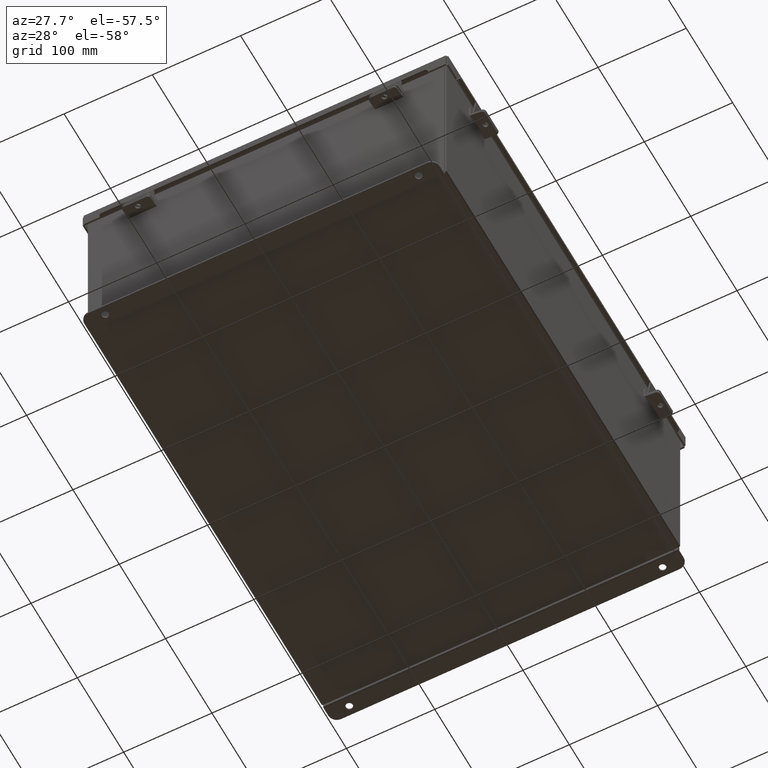
[diagram: clean part render]
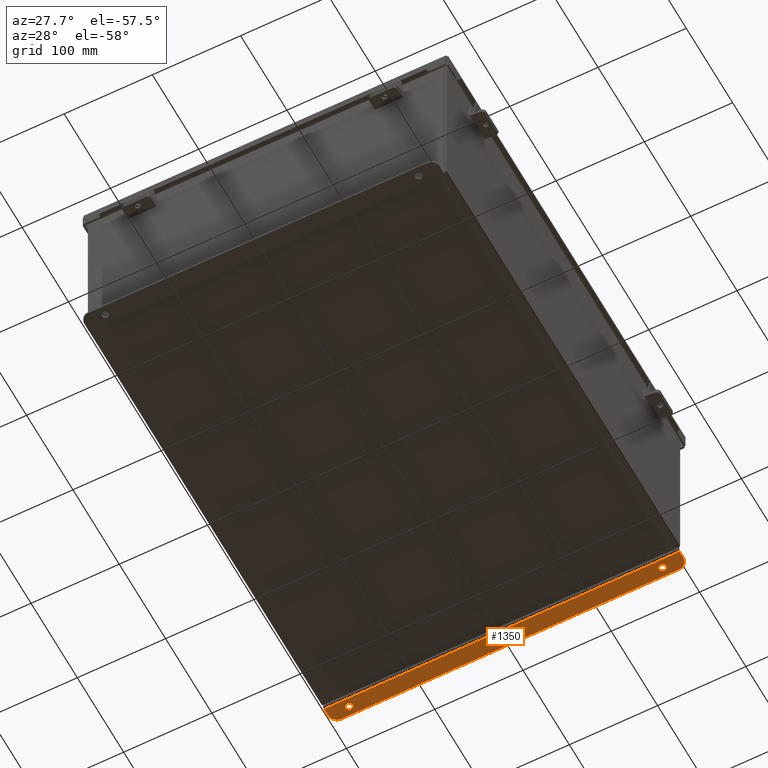
[diagram: same view with one face highlighted and labeled with its STEP entity id]
A machine part, auxiliary view. The second image highlights one B-rep face of the part: STEP entity #1350.
In plain terms, the highlighted planar face has unit normal (0, 0, 1).
Its self-contained STEP definition (entity closure, byte-faithful):
#174 = CARTESIAN_POINT ( 'NONE',  ( 0.0000000000000000000, -1.529834876451987200E-014, -4.187000000000000300 ) ) ;
#320 = CIRCLE ( 'NONE', #4927, 0.3750000000000000600 ) ;
#374 = ORIENTED_EDGE ( 'NONE', *, *, #5047, .T. ) ;
#402 = CARTESIAN_POINT ( 'NONE',  ( 7.550300000000000900, 0.7377999999999989000, -4.187000000000002900 ) ) ;
#669 = EDGE_CURVE ( 'NONE', #8349, #9658, #5257, .T. ) ;
#1083 = LINE ( 'NONE', #7195, #4829 ) ;
#1084 = CARTESIAN_POINT ( 'NONE',  ( -7.550299999999998200, 0.3628000000000008400, -4.187000000000001200 ) ) ;
#1112 = CARTESIAN_POINT ( 'NONE',  ( 6.987800000000000900, 0.3628000000000008400, -4.187000000000001200 ) ) ;
#1158 = CARTESIAN_POINT ( 'NONE',  ( -6.987799999999999100, 0.5188000000000010400, -4.187000000000002100 ) ) ;
#1350 = ADVANCED_FACE ( 'NONE', ( #9416, #5299, #9663 ), #3887, .F. ) ;
#1375 = ORIENTED_EDGE ( 'NONE', *, *, #9020, .T. ) ;
#1517 = ORIENTED_EDGE ( 'NONE', *, *, #1941, .T. ) ;
#1621 = DIRECTION ( 'NONE',  ( 0.0000000000000000000, -3.702694488566362300E-015, -1.000000000000000000 ) ) ;
#1869 = DIRECTION ( 'NONE',  ( 0.0000000000000000000, -1.000000000000000000, 3.702694488566362300E-015 ) ) ;
#1941 = EDGE_CURVE ( 'NONE', #4382, #6588, #3546, .T. ) ;
#1971 = EDGE_LOOP ( 'NONE', ( #9066, #3516 ) ) ;
#2025 = AXIS2_PLACEMENT_3D ( 'NONE', #9094, #4436, #9858 ) ;
#2045 = DIRECTION ( 'NONE',  ( 0.0000000000000000000, -3.702694488566362300E-015, -1.000000000000000000 ) ) ;
#2046 = VECTOR ( 'NONE', #7804, 39.37007874015748100 ) ;
#2048 = VERTEX_POINT ( 'NONE', #8627 ) ;
#2126 = EDGE_LOOP ( 'NONE', ( #9045, #7983 ) ) ;
#2145 = LINE ( 'NONE', #2422, #2046 ) ;
#2422 = CARTESIAN_POINT ( 'NONE',  ( 7.925300000000000900, 0.01300000000000010700, -4.187000000000000300 ) ) ;
#2427 = VERTEX_POINT ( 'NONE', #5351 ) ;
#2721 = AXIS2_PLACEMENT_3D ( 'NONE', #6595, #2045, #7399 ) ;
#2757 = CARTESIAN_POINT ( 'NONE',  ( 7.550300000000000900, 0.3628000000000008400, -4.187000000000001200 ) ) ;
#2767 = CIRCLE ( 'NONE', #2025, 0.1560000000000001900 ) ;
#2797 = AXIS2_PLACEMENT_3D ( 'NONE', #174, #5571, #4279 ) ;
#2912 = CIRCLE ( 'NONE', #8493, 0.3750000000000000600 ) ;
#3496 = EDGE_CURVE ( 'NONE', #6588, #2048, #2912, .T. ) ;
#3516 = ORIENTED_EDGE ( 'NONE', *, *, #669, .F. ) ;
#3525 = DIRECTION ( 'NONE',  ( 0.0000000000000000000, -1.000000000000000000, 4.370956789862820400E-015 ) ) ;
#3546 = LINE ( 'NONE', #4490, #9686 ) ;
#3887 = PLANE ( 'NONE',  #2797 ) ;
#3928 = VERTEX_POINT ( 'NONE', #5377 ) ;
#4279 = DIRECTION ( 'NONE',  ( 0.0000000000000000000, -1.000000000000000000, 3.702694488566362300E-015 ) ) ;
#4378 = DIRECTION ( 'NONE',  ( 0.0000000000000000000, -1.000000000000000000, 4.370956789862820400E-015 ) ) ;
#4382 = VERTEX_POINT ( 'NONE', #7190 ) ;
#4436 = DIRECTION ( 'NONE',  ( 0.0000000000000000000, -3.702694488566362300E-015, -1.000000000000000000 ) ) ;
#4490 = CARTESIAN_POINT ( 'NONE',  ( -7.925299999999998200, -1.529834876451987200E-014, -4.187000000000000300 ) ) ;
#4666 = DIRECTION ( 'NONE',  ( 0.0000000000000000000, 1.000000000000000000, -3.502369222646487000E-015 ) ) ;
#4829 = VECTOR ( 'NONE', #1869, 39.37007874015748100 ) ;
#4927 = AXIS2_PLACEMENT_3D ( 'NONE', #2757, #8139, #3525 ) ;
#4980 = EDGE_CURVE ( 'NONE', #5158, #3928, #5306, .T. ) ;
#5047 = EDGE_CURVE ( 'NONE', #2048, #9632, #9485, .T. ) ;
#5158 = VERTEX_POINT ( 'NONE', #7405 ) ;
#5256 = CIRCLE ( 'NONE', #2721, 0.1560000000000001900 ) ;
#5257 = CIRCLE ( 'NONE', #8052, 0.1560000000000001900 ) ;
#5299 = FACE_BOUND ( 'NONE', #2126, .T. ) ;
#5306 = CIRCLE ( 'NONE', #8808, 0.1560000000000001900 ) ;
#5321 = ORIENTED_EDGE ( 'NONE', *, *, #8711, .F. ) ;
#5351 = CARTESIAN_POINT ( 'NONE',  ( 7.925300000000000900, 0.01300000000000010700, -4.187000000000000300 ) ) ;
#5377 = CARTESIAN_POINT ( 'NONE',  ( 6.987800000000000900, 0.5188000000000010400, -4.187000000000002100 ) ) ;
#5571 = DIRECTION ( 'NONE',  ( 0.0000000000000000000, 3.702694488566362300E-015, 1.000000000000000000 ) ) ;
#5709 = ORIENTED_EDGE ( 'NONE', *, *, #9593, .T. ) ;
#5776 = CARTESIAN_POINT ( 'NONE',  ( 0.0000000000000000000, 0.7377999999999989000, -4.187000000000002900 ) ) ;
#6385 = CARTESIAN_POINT ( 'NONE',  ( -7.925299999999998200, 0.3628000000000008400, -4.187000000000001200 ) ) ;
#6588 = VERTEX_POINT ( 'NONE', #6385 ) ;
#6595 = CARTESIAN_POINT ( 'NONE',  ( -6.987799999999999100, 0.3628000000000008400, -4.187000000000001200 ) ) ;
#6831 = ORIENTED_EDGE ( 'NONE', *, *, #3496, .T. ) ;
#7190 = CARTESIAN_POINT ( 'NONE',  ( -7.925299999999998200, 0.01300000000000010700, -4.187000000000000300 ) ) ;
#7195 = CARTESIAN_POINT ( 'NONE',  ( 7.925300000000000900, -1.529834876451987200E-014, -4.187000000000000300 ) ) ;
#7399 = DIRECTION ( 'NONE',  ( 0.0000000000000000000, 1.000000000000000000, -3.502369222646487000E-015 ) ) ;
#7405 = CARTESIAN_POINT ( 'NONE',  ( 6.987800000000000900, 0.2068000000000006800, -4.187000000000001200 ) ) ;
#7686 = DIRECTION ( 'NONE',  ( 0.0000000000000000000, 1.000000000000000000, -3.702694488566362300E-015 ) ) ;
#7761 = EDGE_CURVE ( 'NONE', #9658, #8349, #5256, .T. ) ;
#7804 = DIRECTION ( 'NONE',  ( 1.000000000000000000, 3.446996320220387800E-017, -1.276317427698856100E-031 ) ) ;
#7983 = ORIENTED_EDGE ( 'NONE', *, *, #4980, .F. ) ;
#8012 = DIRECTION ( 'NONE',  ( 0.0000000000000000000, -3.702694488566362300E-015, -1.000000000000000000 ) ) ;
#8052 = AXIS2_PLACEMENT_3D ( 'NONE', #9078, #8012, #4666 ) ;
#8139 = DIRECTION ( 'NONE',  ( -0.0000000000000000000, -3.702694488566362300E-015, -1.000000000000000000 ) ) ;
#8349 = VERTEX_POINT ( 'NONE', #8867 ) ;
#8492 = DIRECTION ( 'NONE',  ( 1.000000000000000000, 0.0000000000000000000, -0.0000000000000000000 ) ) ;
#8493 = AXIS2_PLACEMENT_3D ( 'NONE', #1084, #9103, #4378 ) ;
#8539 = EDGE_CURVE ( 'NONE', #3928, #5158, #2767, .T. ) ;
#8627 = CARTESIAN_POINT ( 'NONE',  ( -7.550299999999998200, 0.7377999999999989000, -4.187000000000002900 ) ) ;
#8711 = EDGE_CURVE ( 'NONE', #4382, #2427, #2145, .T. ) ;
#8783 = DIRECTION ( 'NONE',  ( 0.0000000000000000000, 1.000000000000000000, -3.502369222646487000E-015 ) ) ;
#8808 = AXIS2_PLACEMENT_3D ( 'NONE', #1112, #1621, #8783 ) ;
#8867 = CARTESIAN_POINT ( 'NONE',  ( -6.987799999999999100, 0.2068000000000006800, -4.187000000000001200 ) ) ;
#9020 = EDGE_CURVE ( 'NONE', #9632, #9131, #320, .T. ) ;
#9045 = ORIENTED_EDGE ( 'NONE', *, *, #8539, .F. ) ;
#9066 = ORIENTED_EDGE ( 'NONE', *, *, #7761, .F. ) ;
#9078 = CARTESIAN_POINT ( 'NONE',  ( -6.987799999999999100, 0.3628000000000008400, -4.187000000000001200 ) ) ;
#9094 = CARTESIAN_POINT ( 'NONE',  ( 6.987800000000000900, 0.3628000000000008400, -4.187000000000001200 ) ) ;
#9103 = DIRECTION ( 'NONE',  ( -0.0000000000000000000, -3.702694488566362300E-015, -1.000000000000000000 ) ) ;
#9131 = VERTEX_POINT ( 'NONE', #9724 ) ;
#9416 = FACE_BOUND ( 'NONE', #1971, .T. ) ;
#9475 = EDGE_LOOP ( 'NONE', ( #374, #1375, #5709, #5321, #1517, #6831 ) ) ;
#9485 = LINE ( 'NONE', #5776, #9713 ) ;
#9593 = EDGE_CURVE ( 'NONE', #9131, #2427, #1083, .T. ) ;
#9632 = VERTEX_POINT ( 'NONE', #402 ) ;
#9658 = VERTEX_POINT ( 'NONE', #1158 ) ;
#9663 = FACE_OUTER_BOUND ( 'NONE', #9475, .T. ) ;
#9686 = VECTOR ( 'NONE', #7686, 39.37007874015748100 ) ;
#9713 = VECTOR ( 'NONE', #8492, 39.37007874015748100 ) ;
#9724 = CARTESIAN_POINT ( 'NONE',  ( 7.925300000000000900, 0.3628000000000008400, -4.187000000000001200 ) ) ;
#9858 = DIRECTION ( 'NONE',  ( 0.0000000000000000000, 1.000000000000000000, -3.502369222646487000E-015 ) ) ;